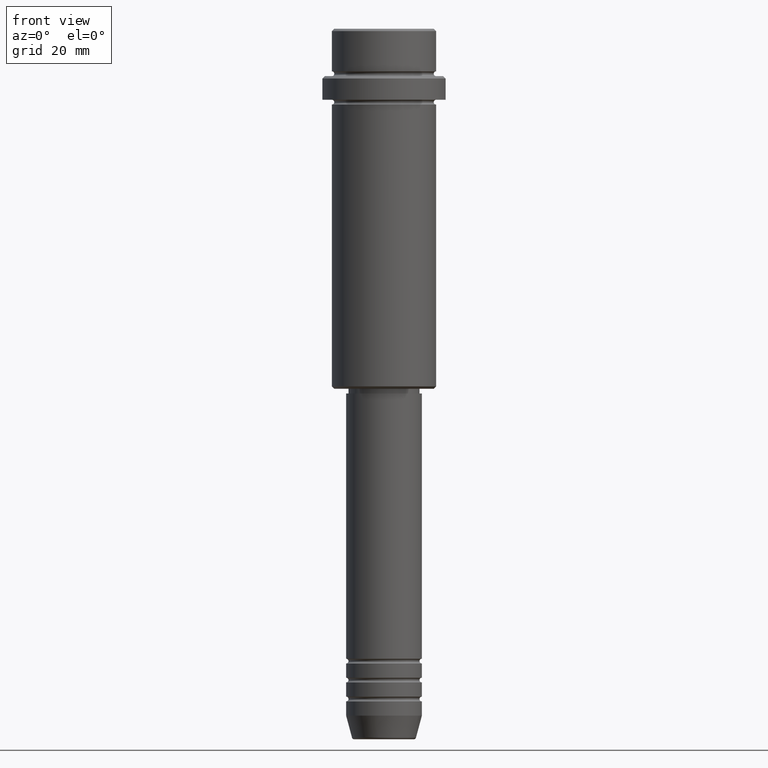
[diagram: clean part render]
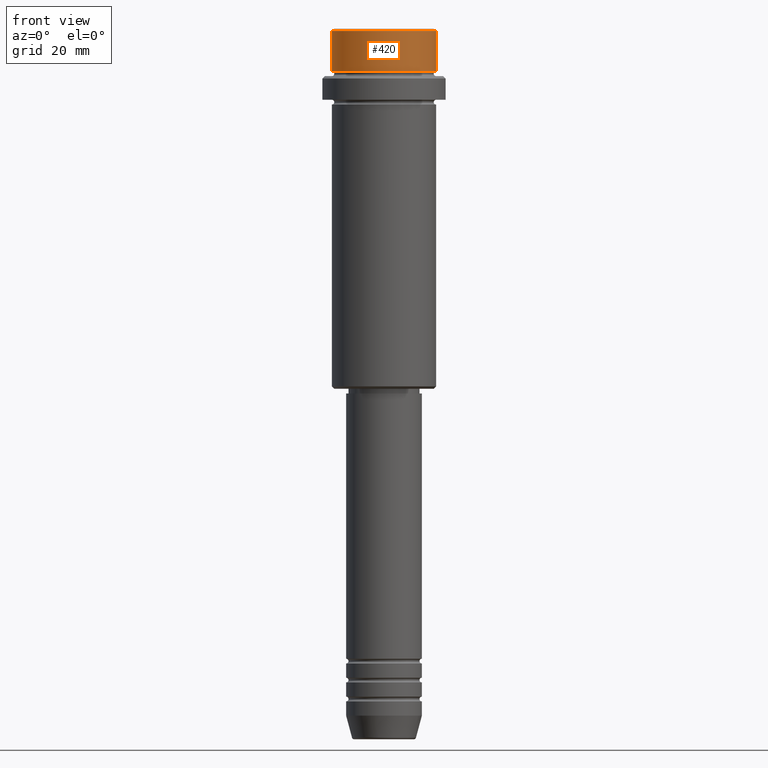
[diagram: same view with one face highlighted and labeled with its STEP entity id]
A machine part, front view. The second image highlights one B-rep face of the part: STEP entity #420.
In plain terms, the highlighted cylindrical surface (partial cylindrical patch) has radius 11 mm, axis along (-0, -0, 1).
Its self-contained STEP definition (entity closure, byte-faithful):
#38 = DIRECTION ( 'NONE',  ( -0.000000000000000000, -0.000000000000000000, 1.000000000000000000 ) ) ;
#56 = VERTEX_POINT ( 'NONE', #550 ) ;
#133 = DIRECTION ( 'NONE',  ( -0.000000000000000000, -0.000000000000000000, 1.000000000000000000 ) ) ;
#167 = ORIENTED_EDGE ( 'NONE', *, *, #697, .T. ) ;
#196 = CIRCLE ( 'NONE', #1069, 10.99999999999998757 ) ;
#226 = ORIENTED_EDGE ( 'NONE', *, *, #385, .T. ) ;
#253 = CARTESIAN_POINT ( 'NONE',  ( -10.99999999999997158, 1.347111479062085841E-15, -9.000000000000000000 ) ) ;
#267 = CARTESIAN_POINT ( 'NONE',  ( 10.99999999999998757, 0.000000000000000000, 0.000000000000000000 ) ) ;
#272 = DIRECTION ( 'NONE',  ( 1.000000000000000000, 0.000000000000000000, 0.000000000000000000 ) ) ;
#298 = VERTEX_POINT ( 'NONE', #253 ) ;
#312 = AXIS2_PLACEMENT_3D ( 'NONE', #1324, #965, #1305 ) ;
#321 = EDGE_CURVE ( 'NONE', #298, #931, #587, .T. ) ;
#333 = CIRCLE ( 'NONE', #712, 10.99999999999997158 ) ;
#385 = EDGE_CURVE ( 'NONE', #298, #56, #333, .T. ) ;
#420 = ADVANCED_FACE ( 'NONE', ( #891 ), #1062, .T. ) ;
#469 = DIRECTION ( 'NONE',  ( 1.000000000000000000, 0.000000000000000000, 0.000000000000000000 ) ) ;
#481 = CARTESIAN_POINT ( 'NONE',  ( 0.000000000000000000, 0.000000000000000000, -0.4999999999999882871 ) ) ;
#503 = EDGE_LOOP ( 'NONE', ( #514, #226, #167, #944 ) ) ;
#514 = ORIENTED_EDGE ( 'NONE', *, *, #321, .F. ) ;
#550 = CARTESIAN_POINT ( 'NONE',  ( 10.99999999999997158, 0.000000000000000000, -9.000000000000000000 ) ) ;
#587 = LINE ( 'NONE', #1246, #1047 ) ;
#623 = VECTOR ( 'NONE', #133, 1000.000000000000000 ) ;
#697 = EDGE_CURVE ( 'NONE', #56, #751, #1101, .T. ) ;
#712 = AXIS2_PLACEMENT_3D ( 'NONE', #1105, #1006, #469 ) ;
#751 = VERTEX_POINT ( 'NONE', #873 ) ;
#804 = DIRECTION ( 'NONE',  ( 0.000000000000000000, 0.000000000000000000, -1.000000000000000000 ) ) ;
#873 = CARTESIAN_POINT ( 'NONE',  ( 10.99999999999998757, 0.000000000000000000, -0.4999999999999882871 ) ) ;
#891 = FACE_OUTER_BOUND ( 'NONE', #503, .T. ) ;
#931 = VERTEX_POINT ( 'NONE', #946 ) ;
#944 = ORIENTED_EDGE ( 'NONE', *, *, #1331, .T. ) ;
#946 = CARTESIAN_POINT ( 'NONE',  ( -10.99999999999998757, 1.347111479062086827E-15, -0.4999999999999882871 ) ) ;
#965 = DIRECTION ( 'NONE',  ( -0.000000000000000000, -0.000000000000000000, 1.000000000000000000 ) ) ;
#1006 = DIRECTION ( 'NONE',  ( -0.000000000000000000, -0.000000000000000000, 1.000000000000000000 ) ) ;
#1047 = VECTOR ( 'NONE', #38, 1000.000000000000000 ) ;
#1062 = CYLINDRICAL_SURFACE ( 'NONE', #312, 10.99999999999998757 ) ;
#1069 = AXIS2_PLACEMENT_3D ( 'NONE', #481, #804, #272 ) ;
#1101 = LINE ( 'NONE', #267, #623 ) ;
#1105 = CARTESIAN_POINT ( 'NONE',  ( 0.000000000000000000, 0.000000000000000000, -9.000000000000000000 ) ) ;
#1246 = CARTESIAN_POINT ( 'NONE',  ( -10.99999999999998757, 1.347111479062086827E-15, 0.000000000000000000 ) ) ;
#1305 = DIRECTION ( 'NONE',  ( 1.000000000000000000, 0.000000000000000000, 0.000000000000000000 ) ) ;
#1324 = CARTESIAN_POINT ( 'NONE',  ( 0.000000000000000000, 0.000000000000000000, 0.000000000000000000 ) ) ;
#1331 = EDGE_CURVE ( 'NONE', #751, #931, #196, .T. ) ;